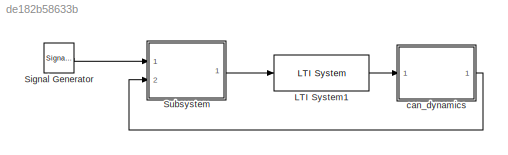
MODEL slx_de182b58633b
KIND model
CONFIG InitFcn = param
BLOCK [Reference] LTI System1  REF=cstblocks/LTI System
  IC = []
  Ports = [1, 1]
  SourceBlock = cstblocks/LTI System
  SourceType = LTI Block
  sys = C
BLOCK [SignalGenerator] Signal Generator
  Amplitude = pi/3
  Ports = [0, 1]
  WaveForm = square
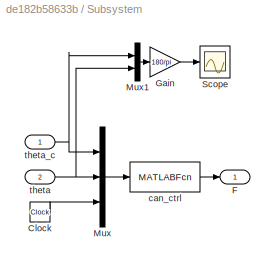
BLOCK [SubSystem] Subsystem
  FunctionWithSeparateData = off
  MaskHideContents = off
  MinAlgLoopOccurrences = off
  Opaque = off
  Ports = [2, 1]
  PropExecContextOutsideSubsystem = off
  RTWSystemCode = Auto
  RequestExecContextInheritance = off
BLOCK [Clock] Subsystem/Clock
BLOCK [Outport] Subsystem/F
  IconDisplay = Port number
BLOCK [Gain] Subsystem/Gain
  Gain = 180/pi
  OutDataTypeStr = Inherit: Inherit via internal rule
  ParamDataTypeStr = Inherit: Inherit via internal rule
  SaturateOnIntegerOverflow = off
BLOCK [Mux] Subsystem/Mux
  DisplayOption = bar
  Inputs = 3
  Ports = [3, 1]
BLOCK [Mux] Subsystem/Mux1
  DisplayOption = bar
  Inputs = 2
  Ports = [2, 1]
BLOCK [Scope] Subsystem/Scope
  DataFormat = StructureWithTime
  Floating = off
  NumInputPorts = 1
  Ports = [1]
  SampleTime = 0
  SaveName = ScopeData1
  ShowLegends = off
  YMax = 80
  YMin = -80
BLOCK [MATLABFcn] Subsystem/can_ctrl
  MATLABFcn = can_ctrl(u,AP)
  OutputDimensions = 1
  Ports = [1, 1]
  SampleTime = AP.Ts
BLOCK [Inport] Subsystem/theta
  IconDisplay = Port number
  Port = 2
BLOCK [Inport] Subsystem/theta_c
  IconDisplay = Port number
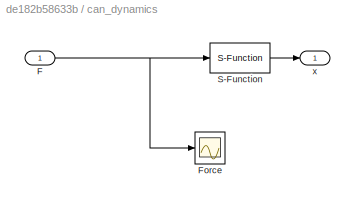
BLOCK [SubSystem] can_dynamics
  FunctionWithSeparateData = off
  MaskHideContents = off
  MinAlgLoopOccurrences = off
  Opaque = off
  Ports = [1, 1]
  PropExecContextOutsideSubsystem = off
  RTWSystemCode = Auto
  RequestExecContextInheritance = off
BLOCK [Inport] can_dynamics/F
  IconDisplay = Port number
BLOCK [Scope] can_dynamics/Force
  DataFormat = StructureWithTime
  Floating = off
  NumInputPorts = 1
  Ports = [1]
  SampleTime = 0
  ShowLegends = off
BLOCK [S-Function] can_dynamics/S-Function
  EnableBusSupport = off
  FunctionName = can_dynamics
  Parameters = AP
  Ports = [1, 1]
BLOCK [Outport] can_dynamics/x
  IconDisplay = Port number
LINE LTI System1:1 -> can_dynamics:1
LINE Signal Generator:1 -> Subsystem:1
LINE Subsystem/Clock:1 -> Subsystem/Mux:3
LINE Subsystem/Gain:1 -> Subsystem/Scope:1
LINE Subsystem/Mux1:1 -> Subsystem/Gain:1
LINE Subsystem/Mux:1 -> Subsystem/can_ctrl:1
LINE Subsystem/can_ctrl:1 -> Subsystem/F:1
NET Subsystem/theta:1 -> Subsystem/Mux1:2, Subsystem/Mux:2
NET Subsystem/theta_c:1 -> Subsystem/Mux1:1, Subsystem/Mux:1
LINE Subsystem:1 -> LTI System1:1
NET can_dynamics/F:1 -> can_dynamics/Force:1, can_dynamics/S-Function:1
LINE can_dynamics/S-Function:1 -> can_dynamics/x:1
LINE can_dynamics:1 -> Subsystem:2
note: NET lines group one-source signal fan-out (src -> all destinations, sorted); 1:1 wires keep LINE
